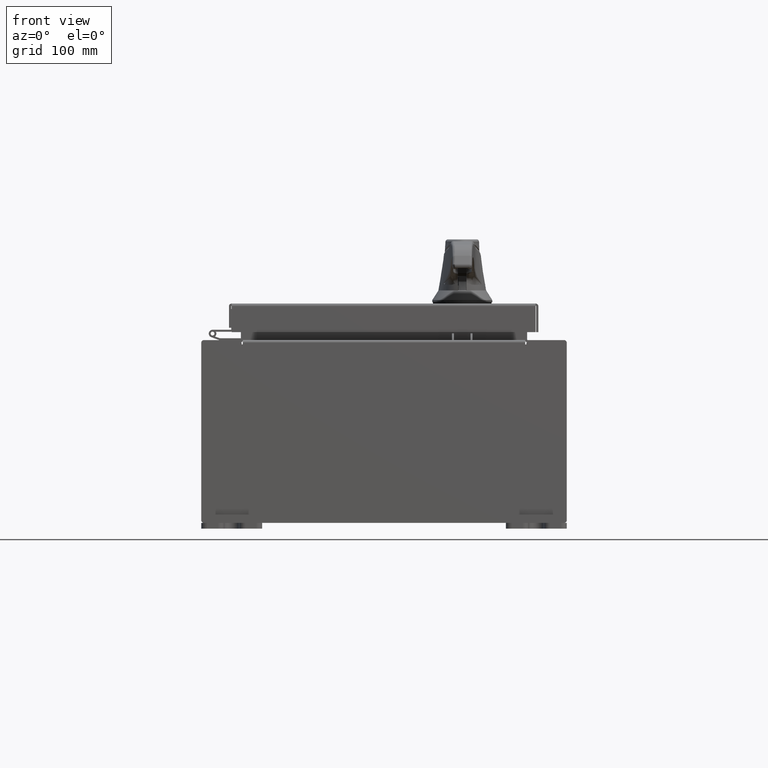
[diagram: clean part render]
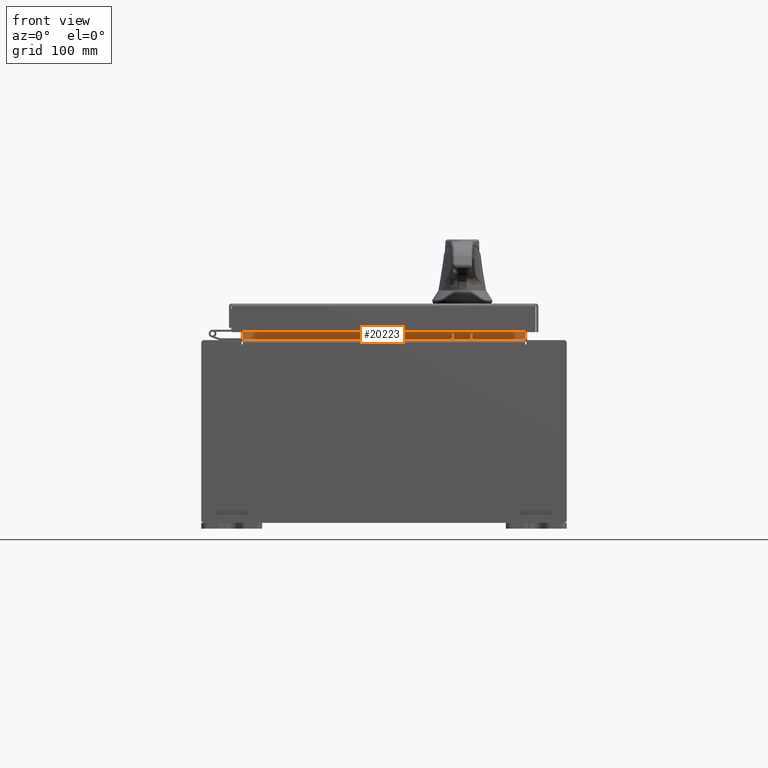
[diagram: same view with one face highlighted and labeled with its STEP entity id]
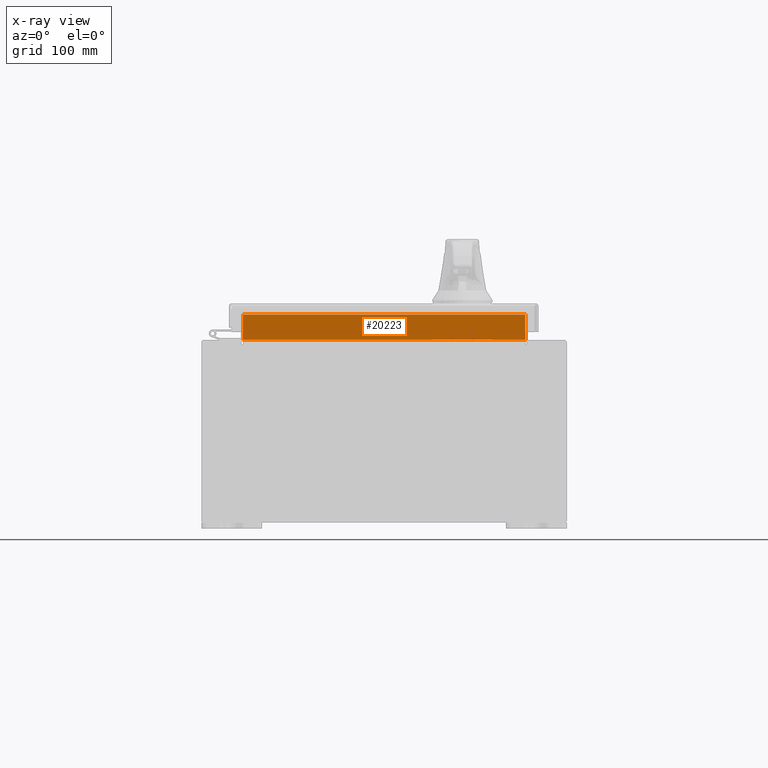
[diagram: x-ray of the same camera — body ghosted, the highlighted face saturated]
A machine part, front view. The second image highlights one B-rep face of the part: STEP entity #20223.
The next image is the same camera in x-ray: the body ghosted, the highlighted face saturated — about 0% of this face is hidden behind the body in this view.
In plain terms, the highlighted planar face has unit normal (0, -1, 0).
Its self-contained STEP definition (entity closure, byte-faithful):
#546 = LINE ( 'NONE', #40579, #104124 ) ;
#3728 = ORIENTED_EDGE ( 'NONE', *, *, #52900, .F. ) ;
#11857 = DIRECTION ( 'NONE',  ( 0.0000000000000000000, 1.000000000000000000, 0.0000000000000000000 ) ) ;
#12482 = VECTOR ( 'NONE', #71092, 39.37007874015748100 ) ;
#13188 = CARTESIAN_POINT ( 'NONE',  ( -4.637199999999999100, -1.300299999999999800, 3.013000000000004300 ) ) ;
#15077 = LINE ( 'NONE', #87148, #12482 ) ;
#17107 = AXIS2_PLACEMENT_3D ( 'NONE', #44766, #11857, #61203 ) ;
#20223 = ADVANCED_FACE ( 'NONE', ( #52783 ), #52977, .T. ) ;
#25074 = VERTEX_POINT ( 'NONE', #26036 ) ;
#26036 = CARTESIAN_POINT ( 'NONE',  ( 4.637200000000001800, -1.300299999999999800, 3.837600000000004600 ) ) ;
#27767 = VECTOR ( 'NONE', #97120, 39.37007874015748100 ) ;
#29300 = VECTOR ( 'NONE', #49989, 39.37007874015748100 ) ;
#31750 = CARTESIAN_POINT ( 'NONE',  ( -4.637199999999999100, -1.300299999999999800, 3.000000000000004400 ) ) ;
#33569 = CARTESIAN_POINT ( 'NONE',  ( -4.637199999999999100, -1.300299999999999800, 3.013000000000004300 ) ) ;
#34321 = VERTEX_POINT ( 'NONE', #13188 ) ;
#35191 = EDGE_CURVE ( 'NONE', #54446, #25074, #15077, .T. ) ;
#40579 = CARTESIAN_POINT ( 'NONE',  ( 4.637200000000001800, -1.300299999999999800, 3.837600000000004600 ) ) ;
#44766 = CARTESIAN_POINT ( 'NONE',  ( 0.0000000000000000000, -1.300299999999999800, 0.0000000000000000000 ) ) ;
#44787 = ORIENTED_EDGE ( 'NONE', *, *, #50565, .F. ) ;
#48779 = DIRECTION ( 'NONE',  ( -1.000000000000000000, -0.0000000000000000000, -0.0000000000000000000 ) ) ;
#48955 = ORIENTED_EDGE ( 'NONE', *, *, #35191, .F. ) ;
#49028 = CARTESIAN_POINT ( 'NONE',  ( 4.637200000000001800, -1.300299999999999800, 3.013000000000004300 ) ) ;
#49517 = LINE ( 'NONE', #31750, #27767 ) ;
#49989 = DIRECTION ( 'NONE',  ( 1.000000000000000000, 0.0000000000000000000, 0.0000000000000000000 ) ) ;
#50565 = EDGE_CURVE ( 'NONE', #34321, #54446, #53598, .T. ) ;
#52783 = FACE_OUTER_BOUND ( 'NONE', #64805, .T. ) ;
#52900 = EDGE_CURVE ( 'NONE', #81422, #34321, #49517, .T. ) ;
#52977 = PLANE ( 'NONE',  #17107 ) ;
#53598 = LINE ( 'NONE', #33569, #29300 ) ;
#54446 = VERTEX_POINT ( 'NONE', #49028 ) ;
#61203 = DIRECTION ( 'NONE',  ( 0.0000000000000000000, -0.0000000000000000000, 1.000000000000000000 ) ) ;
#64805 = EDGE_LOOP ( 'NONE', ( #3728, #83424, #48955, #44787 ) ) ;
#70346 = CARTESIAN_POINT ( 'NONE',  ( -4.637199999999999100, -1.300299999999999800, 3.837600000000004600 ) ) ;
#71092 = DIRECTION ( 'NONE',  ( -0.0000000000000000000, -0.0000000000000000000, 1.000000000000000000 ) ) ;
#81422 = VERTEX_POINT ( 'NONE', #70346 ) ;
#83424 = ORIENTED_EDGE ( 'NONE', *, *, #100950, .F. ) ;
#87148 = CARTESIAN_POINT ( 'NONE',  ( 4.637200000000001800, -1.300299999999999800, 3.925300000000004900 ) ) ;
#97120 = DIRECTION ( 'NONE',  ( -0.0000000000000000000, -0.0000000000000000000, -1.000000000000000000 ) ) ;
#100950 = EDGE_CURVE ( 'NONE', #25074, #81422, #546, .T. ) ;
#104124 = VECTOR ( 'NONE', #48779, 39.37007874015748100 ) ;